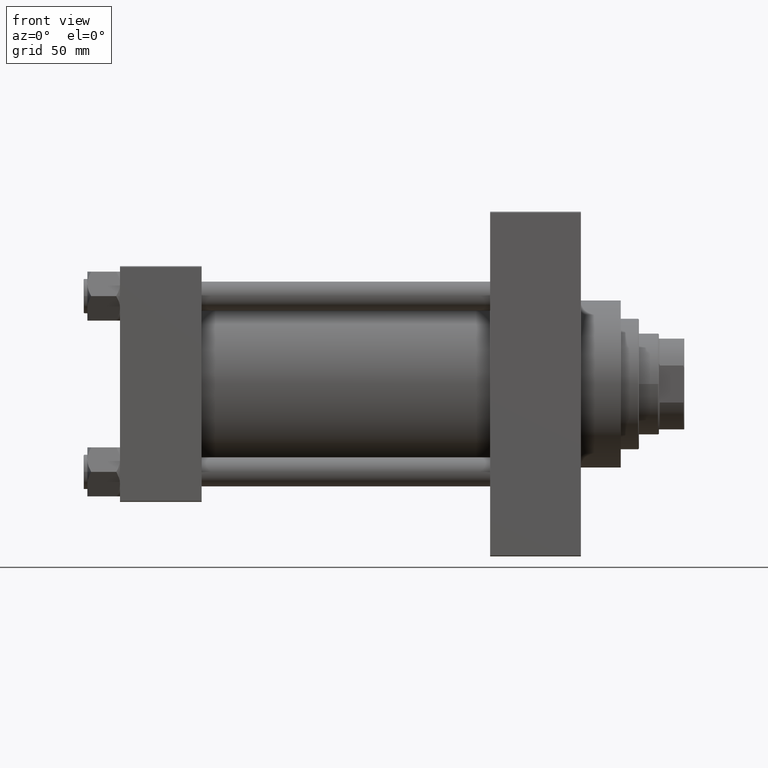
[diagram: clean part render]
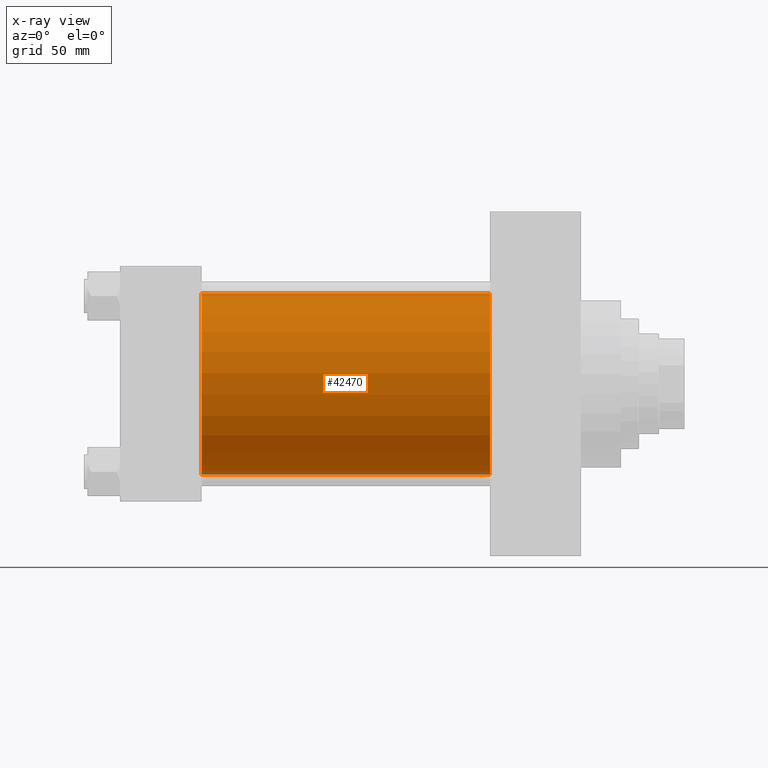
[diagram: x-ray — body ghosted, one internal face saturated and labeled with its STEP entity id]
A machine part, front view, then the same camera in x-ray: the body is ghosted and one INTERNAL B-rep face — a face not visible from any outside direction — is saturated and labeled: STEP entity #42470.
In plain terms, the highlighted cylindrical surface (partial cylindrical patch) has radius 50 mm, axis along (-1, -0, -0).
Its self-contained STEP definition (entity closure, byte-faithful):
#1581 = CARTESIAN_POINT ( 'NONE',  ( 204.0000000000000284, -2.602085213965210642E-15, 0.000000000000000000 ) ) ;
#2414 = VERTEX_POINT ( 'NONE', #31568 ) ;
#2521 = FACE_OUTER_BOUND ( 'NONE', #34945, .T. ) ;
#3729 = CARTESIAN_POINT ( 'NONE',  ( 45.00000000000000000, -2.602085213965210642E-15, 50.00000000000000000 ) ) ;
#7766 = DIRECTION ( 'NONE',  ( -1.000000000000000000, -0.000000000000000000, -0.000000000000000000 ) ) ;
#9592 = VECTOR ( 'NONE', #7766, 1000.000000000000000 ) ;
#10192 = CIRCLE ( 'NONE', #37933, 50.00000000000000000 ) ;
#10419 = DIRECTION ( 'NONE',  ( 0.000000000000000000, 0.000000000000000000, -1.000000000000000000 ) ) ;
#13246 = AXIS2_PLACEMENT_3D ( 'NONE', #24155, #42741, #46366 ) ;
#16303 = DIRECTION ( 'NONE',  ( -1.000000000000000000, -0.000000000000000000, -0.000000000000000000 ) ) ;
#16324 = CIRCLE ( 'NONE', #13246, 50.00000000000000000 ) ;
#17002 = EDGE_CURVE ( 'NONE', #40015, #2414, #16324, .T. ) ;
#17932 = ORIENTED_EDGE ( 'NONE', *, *, #18453, .F. ) ;
#18453 = EDGE_CURVE ( 'NONE', #35195, #32359, #10192, .T. ) ;
#18660 = VECTOR ( 'NONE', #21785, 1000.000000000000000 ) ;
#19932 = CYLINDRICAL_SURFACE ( 'NONE', #42937, 50.00000000000000000 ) ;
#20052 = CARTESIAN_POINT ( 'NONE',  ( 204.0000000000000284, -2.602085213965210642E-15, 50.00000000000000000 ) ) ;
#20166 = DIRECTION ( 'NONE',  ( 0.000000000000000000, 0.000000000000000000, 1.000000000000000000 ) ) ;
#21770 = CARTESIAN_POINT ( 'NONE',  ( 204.0000000000000284, -2.602085213965210642E-15, 50.00000000000000000 ) ) ;
#21785 = DIRECTION ( 'NONE',  ( -1.000000000000000000, -0.000000000000000000, -0.000000000000000000 ) ) ;
#22152 = ORIENTED_EDGE ( 'NONE', *, *, #27336, .T. ) ;
#24155 = CARTESIAN_POINT ( 'NONE',  ( 204.0000000000000284, -2.602085213965210642E-15, 0.000000000000000000 ) ) ;
#26339 = LINE ( 'NONE', #29730, #18660 ) ;
#27336 = EDGE_CURVE ( 'NONE', #2414, #32359, #26339, .T. ) ;
#28988 = ORIENTED_EDGE ( 'NONE', *, *, #17002, .T. ) ;
#29730 = CARTESIAN_POINT ( 'NONE',  ( 204.0000000000000284, 3.521148781771554260E-15, -50.00000000000000000 ) ) ;
#31568 = CARTESIAN_POINT ( 'NONE',  ( 204.0000000000000284, 3.521148781771554260E-15, -50.00000000000000000 ) ) ;
#32359 = VERTEX_POINT ( 'NONE', #44182 ) ;
#32896 = ORIENTED_EDGE ( 'NONE', *, *, #33394, .F. ) ;
#33341 = CARTESIAN_POINT ( 'NONE',  ( 45.00000000000000000, -2.602085213965210642E-15, 0.000000000000000000 ) ) ;
#33394 = EDGE_CURVE ( 'NONE', #40015, #35195, #47597, .T. ) ;
#34945 = EDGE_LOOP ( 'NONE', ( #28988, #22152, #17932, #32896 ) ) ;
#35195 = VERTEX_POINT ( 'NONE', #3729 ) ;
#36727 = DIRECTION ( 'NONE',  ( 1.000000000000000000, 0.000000000000000000, 0.000000000000000000 ) ) ;
#37933 = AXIS2_PLACEMENT_3D ( 'NONE', #33341, #36727, #10419 ) ;
#40015 = VERTEX_POINT ( 'NONE', #20052 ) ;
#42470 = ADVANCED_FACE ( 'NONE', ( #2521 ), #19932, .F. ) ;
#42741 = DIRECTION ( 'NONE',  ( 1.000000000000000000, 0.000000000000000000, 0.000000000000000000 ) ) ;
#42937 = AXIS2_PLACEMENT_3D ( 'NONE', #1581, #16303, #20166 ) ;
#44182 = CARTESIAN_POINT ( 'NONE',  ( 45.00000000000000000, 3.521148781771554260E-15, -50.00000000000000000 ) ) ;
#46366 = DIRECTION ( 'NONE',  ( 0.000000000000000000, 0.000000000000000000, -1.000000000000000000 ) ) ;
#47597 = LINE ( 'NONE', #21770, #9592 ) ;